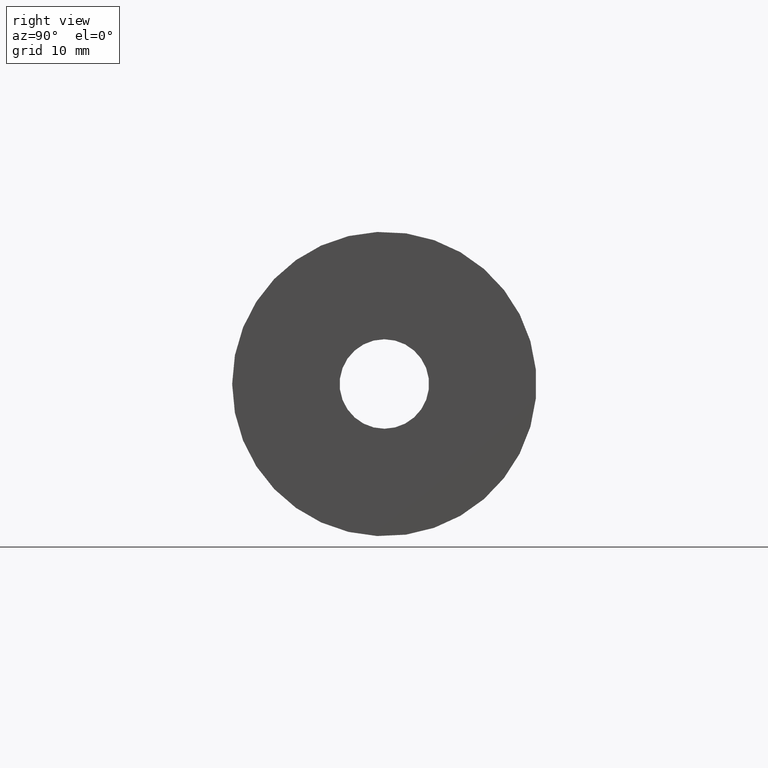
[diagram: clean part render]
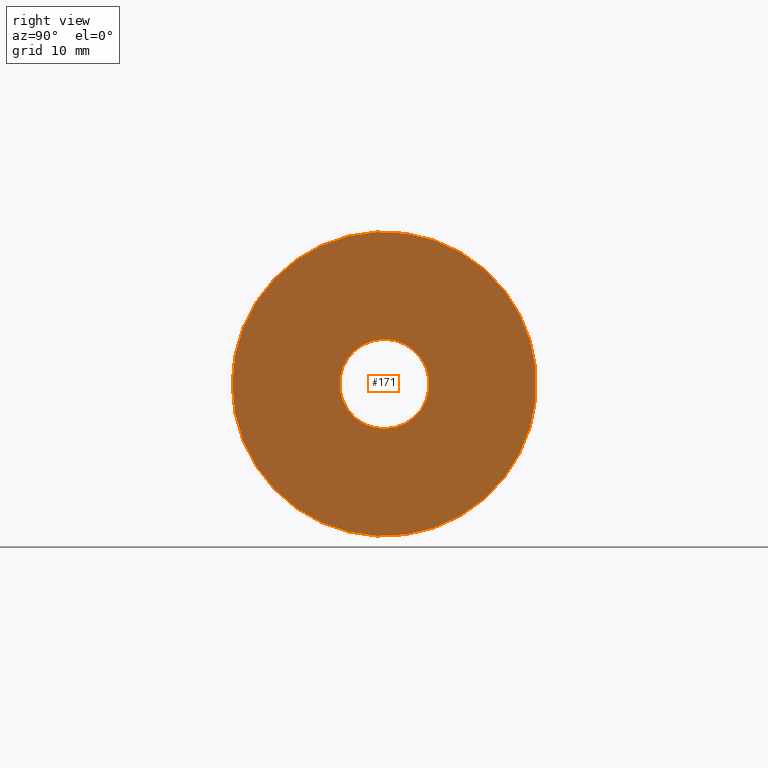
[diagram: same view with one face highlighted and labeled with its STEP entity id]
A machine part, right view. The second image highlights one B-rep face of the part: STEP entity #171.
In plain terms, the highlighted planar face has unit normal (1, 0, 0).
Its self-contained STEP definition (entity closure, byte-faithful):
#16=FACE_BOUND('',#46,.T.);
#20=PLANE('',#216);
#32=FACE_OUTER_BOUND('',#45,.T.);
#45=EDGE_LOOP('',(#144));
#46=EDGE_LOOP('',(#145));
#69=CIRCLE('',#200,3.96875);
#78=CIRCLE('',#215,13.5);
#82=VERTEX_POINT('',#286);
#91=VERTEX_POINT('',#315);
#95=EDGE_CURVE('',#82,#82,#69,.T.);
#109=EDGE_CURVE('',#91,#91,#78,.T.);
#144=ORIENTED_EDGE('',*,*,#109,.T.);
#145=ORIENTED_EDGE('',*,*,#95,.T.);
#171=ADVANCED_FACE('',(#32,#16),#20,.T.);
#200=AXIS2_PLACEMENT_3D('',#287,#228,#229);
#215=AXIS2_PLACEMENT_3D('',#316,#263,#264);
#216=AXIS2_PLACEMENT_3D('',#318,#266,#267);
#228=DIRECTION('center_axis',(-1.,0.,0.));
#229=DIRECTION('ref_axis',(0.,0.,-1.));
#263=DIRECTION('center_axis',(1.,0.,0.));
#264=DIRECTION('ref_axis',(0.,0.,-1.));
#266=DIRECTION('center_axis',(1.,0.,0.));
#267=DIRECTION('ref_axis',(0.,0.,-1.));
#286=CARTESIAN_POINT('',(2.66453525910038E-14,-4.86031698411606E-16,3.96875));
#287=CARTESIAN_POINT('Origin',(1.77635683940025E-14,0.,0.));
#315=CARTESIAN_POINT('',(4.9960036108132E-15,-13.5,-1.65327317884893E-15));
#316=CARTESIAN_POINT('Origin',(4.9960036108132E-15,0.,0.));
#318=CARTESIAN_POINT('Origin',(1.33226762955019E-14,0.,0.));